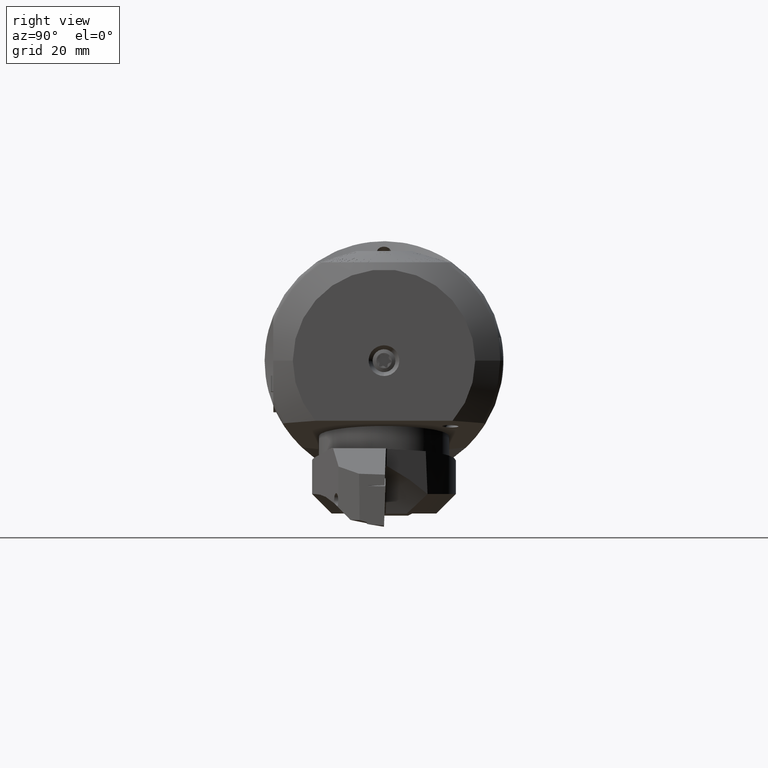
[diagram: clean part render]
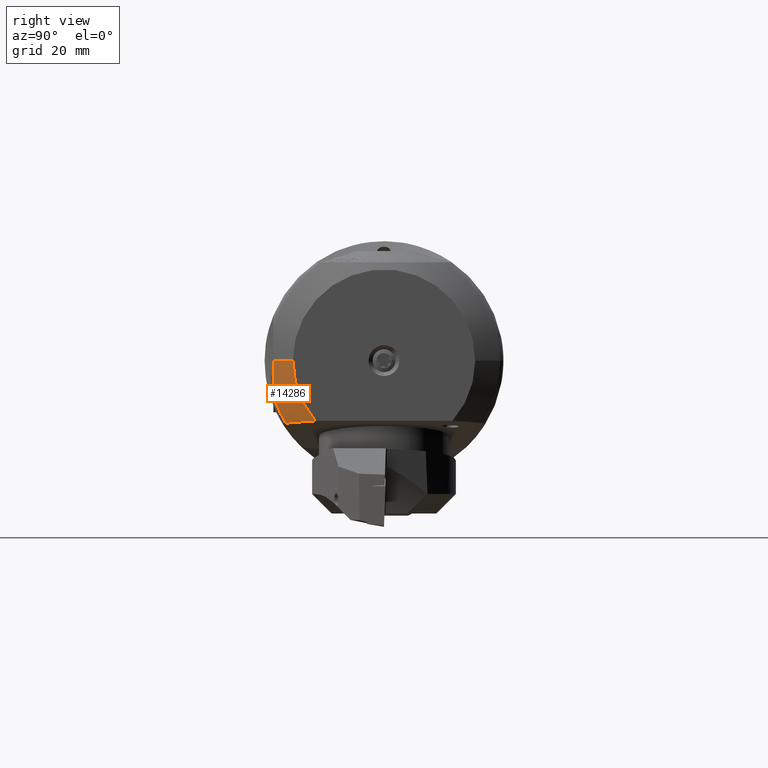
[diagram: same view with one face highlighted and labeled with its STEP entity id]
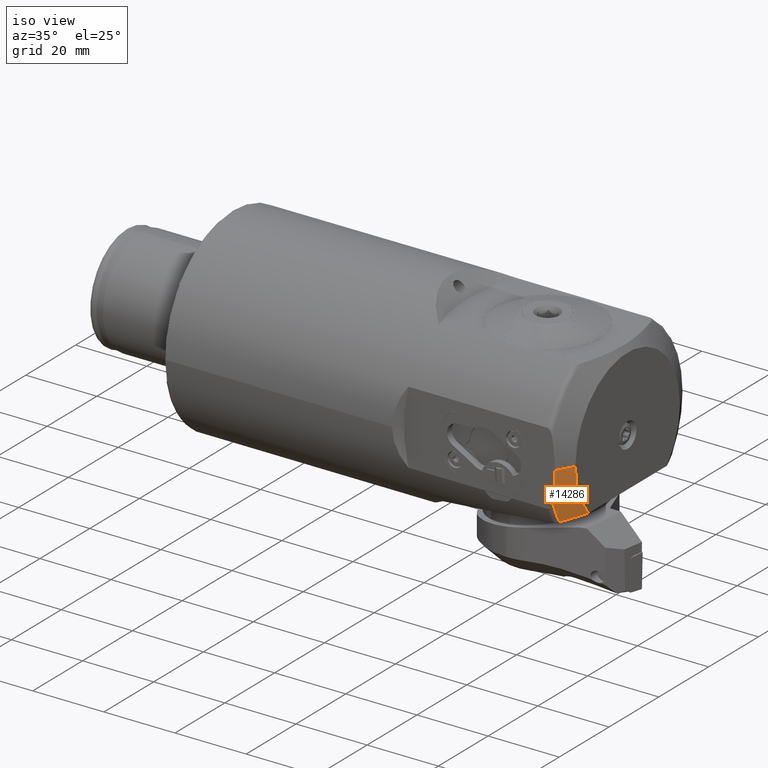
[diagram: same view with one face highlighted and labeled with its STEP entity id]
A machine part, right view. The second image highlights one B-rep face of the part: STEP entity #14286.
A second angle (iso view) of the same face is appended — the face is thin or edge-on in the first view.
In plain terms, the highlighted conical surface has half-angle 60 deg.
Its self-contained STEP definition (entity closure, byte-faithful):
#311 = ORIENTED_EDGE ( 'NONE', *, *, #3741, .T. ) ;
#2088 = CARTESIAN_POINT ( 'NONE',  ( 108.8261776951650300, -20.32379849066594000, -14.19005179855361300 ) ) ;
#2241 = CARTESIAN_POINT ( 'NONE',  ( 107.6802359521596500, -22.56149413992010400, -14.37155114016403700 ) ) ;
#3328 = DIRECTION ( 'NONE',  ( 1.000000000000000000, 1.217090944573382400E-016, -0.0000000000000000000 ) ) ;
#3720 = LINE ( 'NONE', #34938, #34716 ) ;
#3741 = EDGE_CURVE ( 'NONE', #12053, #28824, #8977, .T. ) ;
#4465 = CARTESIAN_POINT ( 'NONE',  ( 108.4019237886466700, -25.49999999999999300, -1.615814325833335800E-021 ) ) ;
#5073 = CARTESIAN_POINT ( 'NONE',  ( 107.6802359521596500, -22.56149413992010400, -14.37155114016403700 ) ) ;
#7628 = DIRECTION ( 'NONE',  ( 1.000000000000000000, 1.217090944573382400E-016, -0.0000000000000000000 ) ) ;
#8930 = EDGE_LOOP ( 'NONE', ( #34154, #17674, #30108, #311, #30624 ) ) ;
#8977 = CIRCLE ( 'NONE', #21150, 26.75000000000000000 ) ;
#9682 = EDGE_CURVE ( 'NONE', #28824, #21357, #27414, .T. ) ;
#10258 = CARTESIAN_POINT ( 'NONE',  ( 107.6802359521596600, -25.49999999999999300, -8.081614937622294500 ) ) ;
#10601 = AXIS2_PLACEMENT_3D ( 'NONE', #22111, #24981, #13063 ) ;
#10909 = EDGE_CURVE ( 'NONE', #11553, #21357, #14276, .T. ) ;
#11553 = VERTEX_POINT ( 'NONE', #32512 ) ;
#12053 = VERTEX_POINT ( 'NONE', #10258 ) ;
#13063 = DIRECTION ( 'NONE',  ( 0.0000000000000000000, -1.000000000000000000, 0.0000000000000000000 ) ) ;
#13946 = DIRECTION ( 'NONE',  ( -0.5000000000000007800, -0.8660254037844381500, 0.0000000000000000000 ) ) ;
#14276 = CIRCLE ( 'NONE', #25604, 20.99999999999999300 ) ;
#14286 = ADVANCED_FACE ( 'NONE', ( #38450 ), #37504, .T. ) ;
#15566 = B_SPLINE_CURVE_WITH_KNOTS ( 'NONE', 3,
 ( #4465, #22428, #37570, #19535 ),
 .UNSPECIFIED., .F., .F.,
 ( 4, 4 ),
 ( 0.02831531774140779900, 0.03640733069008080000 ),
 .UNSPECIFIED. ) ;
#17674 = ORIENTED_EDGE ( 'NONE', *, *, #37622, .T. ) ;
#18266 = VERTEX_POINT ( 'NONE', #29916 ) ;
#19535 = CARTESIAN_POINT ( 'NONE',  ( 107.6802359521596600, -25.49999999999999300, -8.081614937622294500 ) ) ;
#21150 = AXIS2_PLACEMENT_3D ( 'NONE', #21261, #3328, #24256 ) ;
#21261 = CARTESIAN_POINT ( 'NONE',  ( 107.6802359521596500, 1.322726650432315400E-014, 0.0000000000000000000 ) ) ;
#21357 = VERTEX_POINT ( 'NONE', #34093 ) ;
#22111 = CARTESIAN_POINT ( 'NONE',  ( 111.0000000000000000, 1.366094737331735600E-014, 0.0000000000000000000 ) ) ;
#22428 = CARTESIAN_POINT ( 'NONE',  ( 108.4019237886466700, -25.49999999999999300, -2.704289746972452500 ) ) ;
#24256 = DIRECTION ( 'NONE',  ( 0.0000000000000000000, 1.000000000000000000, 0.0000000000000000000 ) ) ;
#24981 = DIRECTION ( 'NONE',  ( -1.000000000000000000, -1.217090944573382400E-016, 0.0000000000000000000 ) ) ;
#25594 = CARTESIAN_POINT ( 'NONE',  ( 111.0000000000000000, 1.366094737331735600E-014, 0.0000000000000000000 ) ) ;
#25604 = AXIS2_PLACEMENT_3D ( 'NONE', #25594, #7628, #28650 ) ;
#25922 = CARTESIAN_POINT ( 'NONE',  ( 109.9451744452264700, -18.07256337180985300, -14.01282012457016200 ) ) ;
#26036 = CARTESIAN_POINT ( 'NONE',  ( 111.0000000000000000, -15.78908315458881600, -13.84575216943734700 ) ) ;
#26347 = EDGE_CURVE ( 'NONE', #18266, #12053, #15566, .T. ) ;
#27414 = B_SPLINE_CURVE_WITH_KNOTS ( 'NONE', 3,
 ( #5073, #2088, #25922, #26036 ),
 .UNSPECIFIED., .F., .F.,
 ( 4, 4 ),
 ( 4.398478515866563900E-007, 0.007561051492763357100 ),
 .UNSPECIFIED. ) ;
#28650 = DIRECTION ( 'NONE',  ( 0.0000000000000000000, 1.000000000000000000, 0.0000000000000000000 ) ) ;
#28824 = VERTEX_POINT ( 'NONE', #2241 ) ;
#29916 = CARTESIAN_POINT ( 'NONE',  ( 108.4019237886466700, -25.49999999999999300, -1.615814325833335800E-021 ) ) ;
#30108 = ORIENTED_EDGE ( 'NONE', *, *, #26347, .T. ) ;
#30624 = ORIENTED_EDGE ( 'NONE', *, *, #9682, .T. ) ;
#32512 = CARTESIAN_POINT ( 'NONE',  ( 111.0000000000000000, -20.99999999999998200, 0.0000000000000000000 ) ) ;
#34093 = CARTESIAN_POINT ( 'NONE',  ( 111.0000000000000000, -15.78908315458881600, -13.84575216943734700 ) ) ;
#34154 = ORIENTED_EDGE ( 'NONE', *, *, #10909, .F. ) ;
#34716 = VECTOR ( 'NONE', #13946, 1000.000000000000100 ) ;
#34938 = CARTESIAN_POINT ( 'NONE',  ( 111.0000000000000000, -20.99999999999998200, 0.0000000000000000000 ) ) ;
#37504 = CONICAL_SURFACE ( 'NONE', #10601, 20.99999999999999300, 1.047197551196596700 ) ;
#37570 = CARTESIAN_POINT ( 'NONE',  ( 108.1484006379604100, -25.49999999999999300, -5.397600107784763100 ) ) ;
#37622 = EDGE_CURVE ( 'NONE', #11553, #18266, #3720, .T. ) ;
#38450 = FACE_OUTER_BOUND ( 'NONE', #8930, .T. ) ;